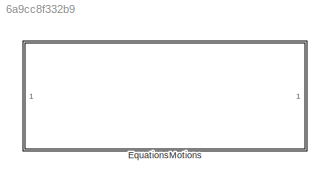
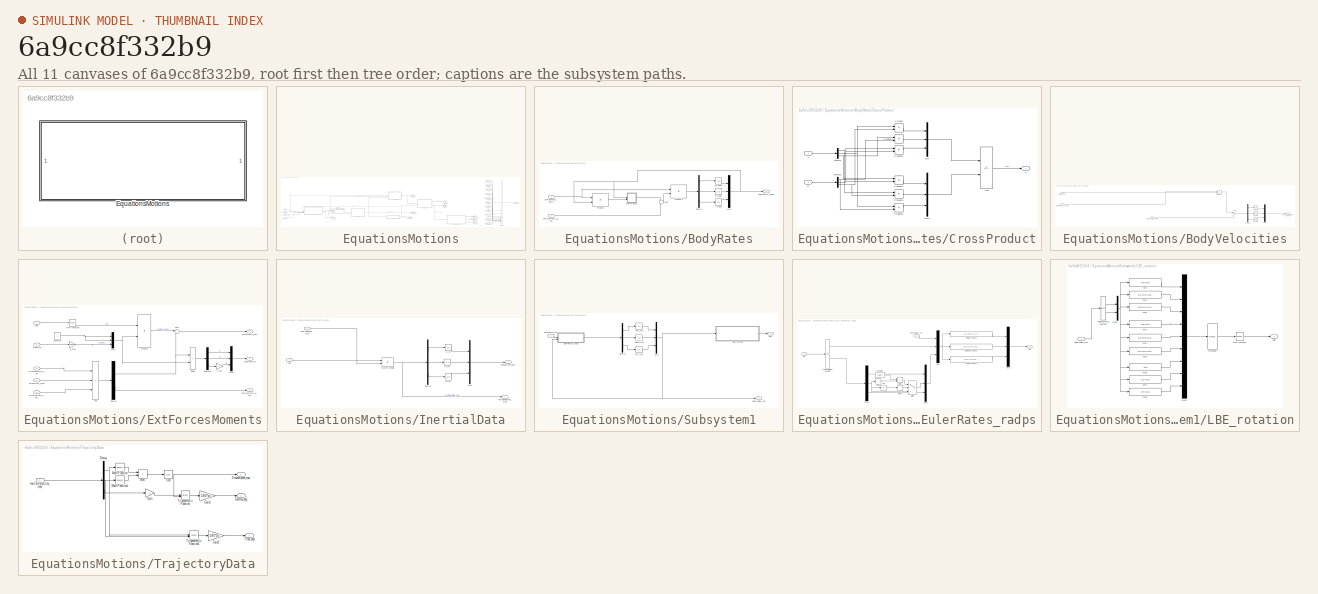
[diagram: thumbnail index - all 11 canvases of the model, root first then tree order]
MODEL slx_6a9cc8f332b9
KIND model
CONFIG AbsTol = auto
CONFIG EnableMultiTasking = off
CONFIG FixedStep = auto
CONFIG MaxStep = auto
CONFIG MinStep = auto
CONFIG RelTol = 1e-3
CONFIG SampleTimeConstraint = Unconstrained
CONFIG SolverName = VariableStepAuto
CONFIG StartTime = 0.0
CONFIG StopTime = 10.0
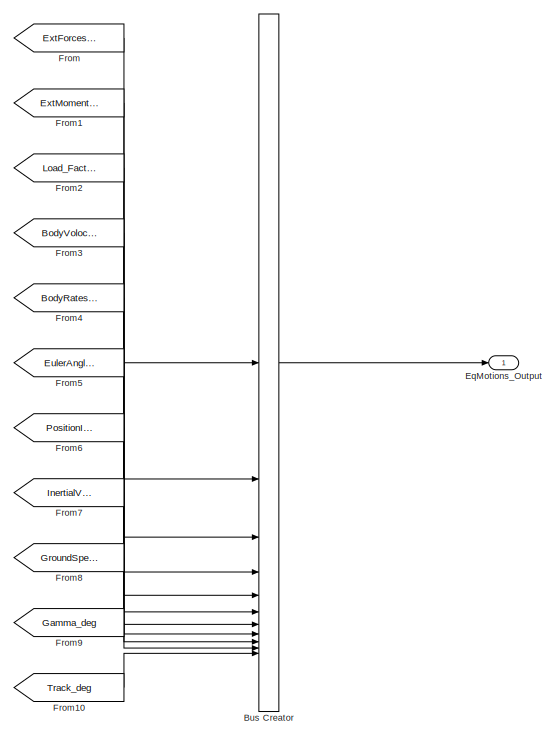
[diagram: EquationsMotions - part 1/4, right side, full height]
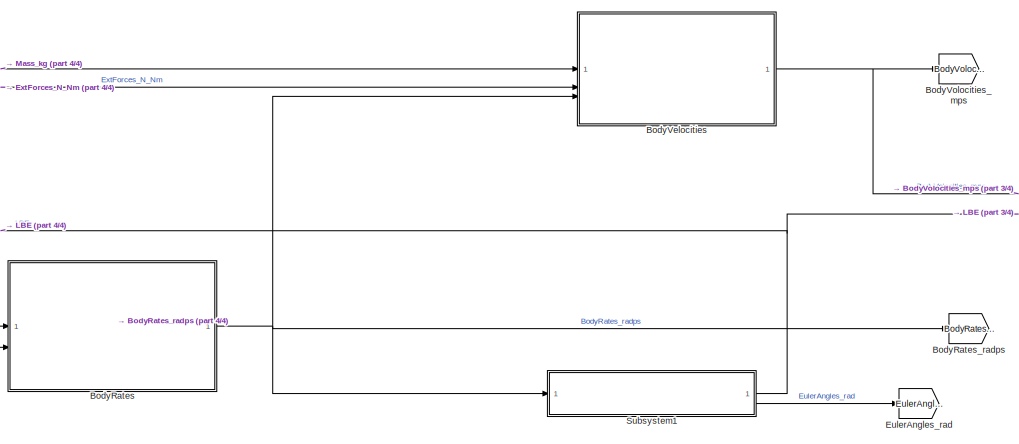
[diagram: EquationsMotions - part 2/4, central region]
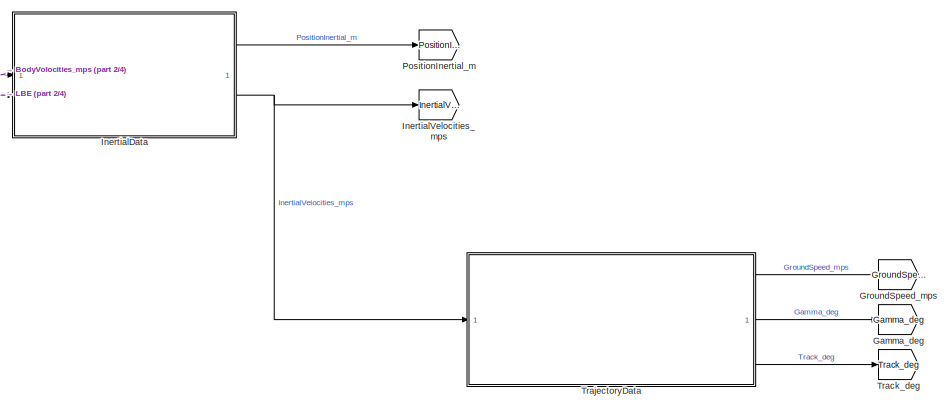
[diagram: EquationsMotions - part 3/4, bottom right region]
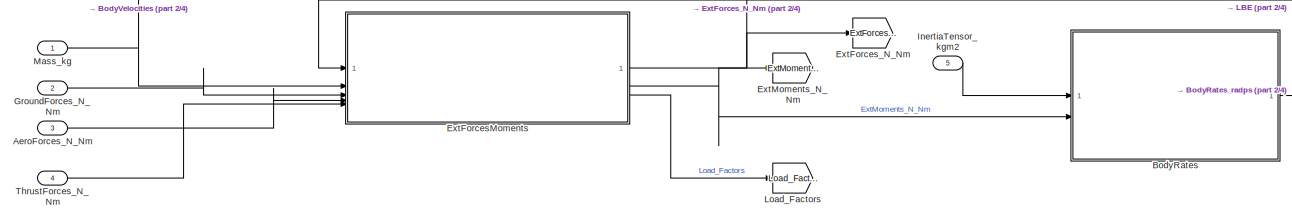
[diagram: EquationsMotions - part 4/4, bottom left region]
BLOCK [SubSystem] EquationsMotions
BLOCK [Inport] EquationsMotions/AeroForces_N_Nm
  Port = 3
BLOCK [SubSystem] EquationsMotions/BodyRates
BLOCK [Outport] EquationsMotions/BodyRates/BodyRates_radps
BLOCK [SubSystem] EquationsMotions/BodyRates/CrossProduct
BLOCK [Inport] EquationsMotions/BodyRates/CrossProduct/A
BLOCK [Sum] EquationsMotions/BodyRates/CrossProduct/Add
  IconShape = rectangular
  Inputs = +-
BLOCK [Inport] EquationsMotions/BodyRates/CrossProduct/B
  Port = 2
BLOCK [Outport] EquationsMotions/BodyRates/CrossProduct/C
BLOCK [Demux] EquationsMotions/BodyRates/CrossProduct/Demux
  Outputs = 3
BLOCK [Demux] EquationsMotions/BodyRates/CrossProduct/Demux1
  Outputs = 3
BLOCK [Mux] EquationsMotions/BodyRates/CrossProduct/Mux
  DisplayOption = bar
  Inputs = 3
BLOCK [Mux] EquationsMotions/BodyRates/CrossProduct/Mux1
  DisplayOption = bar
  Inputs = 3
BLOCK [Product] EquationsMotions/BodyRates/CrossProduct/Product
BLOCK [Product] EquationsMotions/BodyRates/CrossProduct/Product1
BLOCK [Product] EquationsMotions/BodyRates/CrossProduct/Product2
BLOCK [Product] EquationsMotions/BodyRates/CrossProduct/Product3
BLOCK [Product] EquationsMotions/BodyRates/CrossProduct/Product4
BLOCK [Product] EquationsMotions/BodyRates/CrossProduct/Product5
BLOCK [Demux] EquationsMotions/BodyRates/Demux
  Outputs = 3
BLOCK [Inport] EquationsMotions/BodyRates/ExtMoments_N_Nm
  Port = 2
BLOCK [Inport] EquationsMotions/BodyRates/InertiaTensor_kgm2
BLOCK [Mux] EquationsMotions/BodyRates/Mux
  DisplayOption = bar
  Inputs = 3
BLOCK [Product] EquationsMotions/BodyRates/Product
  Multiplication = Matrix(*)
BLOCK [Product] EquationsMotions/BodyRates/Product1
  Inputs = /*
BLOCK [Sum] EquationsMotions/BodyRates/Sum
  Inputs = -+
BLOCK [Integrator] EquationsMotions/BodyRates/p_radps
BLOCK [Integrator] EquationsMotions/BodyRates/q_radps
BLOCK [Integrator] EquationsMotions/BodyRates/r_radps
BLOCK [Goto] EquationsMotions/BodyRates_radps
  GotoTag = BodyRates_radps
BLOCK [SubSystem] EquationsMotions/BodyVelocities
BLOCK [Inport] EquationsMotions/BodyVelocities/BodyRates_mps
  Port = 3
BLOCK [Outport] EquationsMotions/BodyVelocities/BodyVolocities_radps
BLOCK [Demux] EquationsMotions/BodyVelocities/Demux
  Outputs = 3
BLOCK [Inport] EquationsMotions/BodyVelocities/ExtForces_N_Nm
  Port = 2
BLOCK [Inport] EquationsMotions/BodyVelocities/Mass_KG
BLOCK [Mux] EquationsMotions/BodyVelocities/Mux
  DisplayOption = bar
  Inputs = 3
BLOCK [Product] EquationsMotions/BodyVelocities/Product
  Inputs = */
BLOCK [Sum] EquationsMotions/BodyVelocities/Sum
  Inputs = |+-
BLOCK [Integrator] EquationsMotions/BodyVelocities/q_mps
BLOCK [Integrator] EquationsMotions/BodyVelocities/u_mps
BLOCK [Integrator] EquationsMotions/BodyVelocities/v_mps
BLOCK [Goto] EquationsMotions/BodyVolocities_mps
  GotoTag = BodyVolocities_mps
BLOCK [BusCreator] EquationsMotions/Bus Creator
  DisplayOption = bar
  InheritFromInputs = on
  Inputs = 11
BLOCK [Outport] EquationsMotions/EqMotions_Output
BLOCK [Goto] EquationsMotions/EulerAngles_rad
  GotoTag = EulerAngles_rad
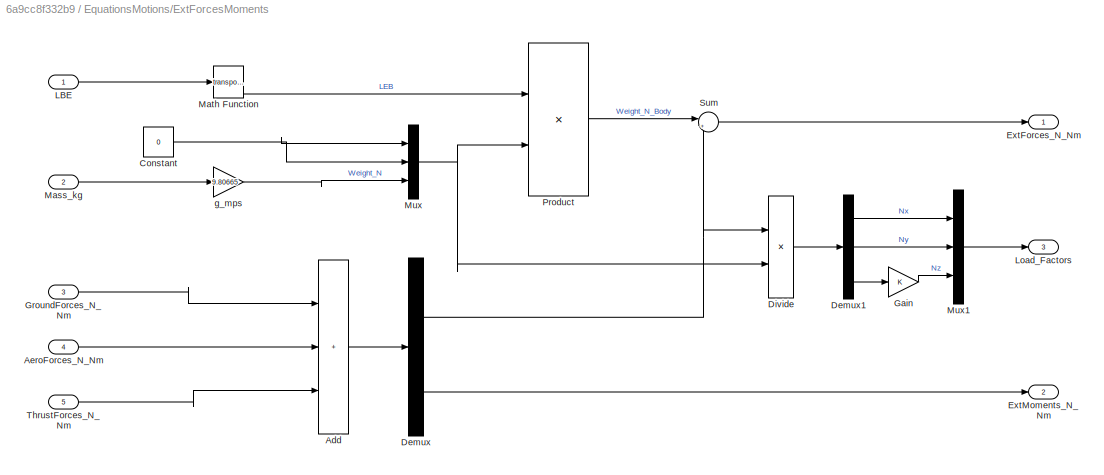
BLOCK [SubSystem] EquationsMotions/ExtForcesMoments
BLOCK [Sum] EquationsMotions/ExtForcesMoments/Add
  IconShape = rectangular
  Inputs = +++
BLOCK [Inport] EquationsMotions/ExtForcesMoments/AeroForces_N_Nm
  Port = 4
BLOCK [Constant] EquationsMotions/ExtForcesMoments/Constant
  Value = 0
BLOCK [Demux] EquationsMotions/ExtForcesMoments/Demux
  Outputs = 2
BLOCK [Demux] EquationsMotions/ExtForcesMoments/Demux1
  Outputs = 3
BLOCK [Product] EquationsMotions/ExtForcesMoments/Divide
  Inputs = */
  Multiplication = Matrix(*)
BLOCK [Outport] EquationsMotions/ExtForcesMoments/ExtForces_N_Nm
BLOCK [Outport] EquationsMotions/ExtForcesMoments/ExtMoments_N_Nm
  Port = 2
BLOCK [Gain] EquationsMotions/ExtForcesMoments/Gain
BLOCK [Inport] EquationsMotions/ExtForcesMoments/GroundForces_N_Nm
  Port = 3
BLOCK [Inport] EquationsMotions/ExtForcesMoments/LBE
BLOCK [Outport] EquationsMotions/ExtForcesMoments/Load_Factors
  Port = 3
BLOCK [Inport] EquationsMotions/ExtForcesMoments/Mass_kg
  Port = 2
BLOCK [Math] EquationsMotions/ExtForcesMoments/Math Function
  Operator = transpose
BLOCK [Mux] EquationsMotions/ExtForcesMoments/Mux
  DisplayOption = bar
  Inputs = 3
BLOCK [Mux] EquationsMotions/ExtForcesMoments/Mux1
  DisplayOption = bar
  Inputs = 3
BLOCK [Product] EquationsMotions/ExtForcesMoments/Product
  Multiplication = Matrix(*)
BLOCK [Sum] EquationsMotions/ExtForcesMoments/Sum
  Inputs = |++
BLOCK [Inport] EquationsMotions/ExtForcesMoments/ThrustForces_N_Nm
  Port = 5
BLOCK [Gain] EquationsMotions/ExtForcesMoments/g_mps
  Gain = 9.80665
BLOCK [Goto] EquationsMotions/ExtForces_N_Nm
  GotoTag = ExtForces_N_Nm
BLOCK [Goto] EquationsMotions/ExtMoments_N_Nm
  GotoTag = ExtMoments_N_Nm
BLOCK [From] EquationsMotions/From
  GotoTag = ExtForces_N_Nm
BLOCK [From] EquationsMotions/From1
  GotoTag = ExtMoments_N_Nm
BLOCK [From] EquationsMotions/From10
  GotoTag = Track_deg
BLOCK [From] EquationsMotions/From2
  GotoTag = Load_Factors
BLOCK [From] EquationsMotions/From3
  GotoTag = BodyVolocities_mps
BLOCK [From] EquationsMotions/From4
  GotoTag = BodyRates_radps
BLOCK [From] EquationsMotions/From5
  GotoTag = EulerAngles_rad
BLOCK [From] EquationsMotions/From6
  GotoTag = PositionInertial_m
BLOCK [From] EquationsMotions/From7
  GotoTag = InertialVelocities_mps
BLOCK [From] EquationsMotions/From8
  GotoTag = GroundSpeed_mps
BLOCK [From] EquationsMotions/From9
  GotoTag = Gamma_deg
BLOCK [Goto] EquationsMotions/Gamma_deg
  GotoTag = Gamma_deg
BLOCK [Inport] EquationsMotions/GroundForces_N_Nm
  Port = 2
BLOCK [Goto] EquationsMotions/GroundSpeed_mps
  GotoTag = GroundSpeed_mps
BLOCK [Inport] EquationsMotions/InertiaTensor_kgm2
  Port = 5
BLOCK [SubSystem] EquationsMotions/InertialData
BLOCK [Inport] EquationsMotions/InertialData/BodyVolocities_mps
BLOCK [Demux] EquationsMotions/InertialData/Demux
  Outputs = 3
BLOCK [Outport] EquationsMotions/InertialData/InertialVelocities_mps
  Port = 2
BLOCK [Inport] EquationsMotions/InertialData/LBE
  Port = 2
BLOCK [Product] EquationsMotions/InertialData/Matrix Multiply
  Multiplication = Matrix(*)
BLOCK [Mux] EquationsMotions/InertialData/Mux
  DisplayOption = bar
  Inputs = 3
BLOCK [Outport] EquationsMotions/InertialData/PositionInertial_m
BLOCK [Integrator] EquationsMotions/InertialData/XI_m
BLOCK [Integrator] EquationsMotions/InertialData/YI_m
BLOCK [Integrator] EquationsMotions/InertialData/ZI_m
BLOCK [Goto] EquationsMotions/InertialVelocities_mps
  GotoTag = InertialVelocities_mps
BLOCK [Goto] EquationsMotions/Load_Factors
  GotoTag = Load_Factors
BLOCK [Inport] EquationsMotions/Mass_kg
BLOCK [Goto] EquationsMotions/PositionInertial_m
  GotoTag = PositionInertial_m
BLOCK [SubSystem] EquationsMotions/Subsystem1
BLOCK [Inport] EquationsMotions/Subsystem1/BodyRates_rps
BLOCK [Demux] EquationsMotions/Subsystem1/Demux
  Outputs = 3
BLOCK [Outport] EquationsMotions/Subsystem1/EulerAngles_rad
  Port = 2
BLOCK [SubSystem] EquationsMotions/Subsystem1/EulerRates_radps
BLOCK [Abs] EquationsMotions/Subsystem1/EulerRates_radps/Abs
  SaturateOnIntegerOverflow = off
BLOCK [Inport] EquationsMotions/Subsystem1/EulerRates_radps/BodyRates_rps
BLOCK [Constant] EquationsMotions/Subsystem1/EulerRates_radps/Constant
  Value = 0.001
BLOCK [Demux] EquationsMotions/Subsystem1/EulerRates_radps/Demux
  Outputs = 3
BLOCK [Product] EquationsMotions/Subsystem1/EulerRates_radps/Divide
  Inputs = **
BLOCK [Inport] EquationsMotions/Subsystem1/EulerRates_radps/In2
  Port = 2
BLOCK [Mux] EquationsMotions/Subsystem1/EulerRates_radps/Mux
  DisplayOption = bar
  Inputs = 3
BLOCK [Mux] EquationsMotions/Subsystem1/EulerRates_radps/Mux1
  DisplayOption = bar
  Inputs = 3
BLOCK [Mux] EquationsMotions/Subsystem1/EulerRates_radps/Mux2
  DisplayOption = bar
  Inputs = 3
BLOCK [Outport] EquationsMotions/Subsystem1/EulerRates_radps/Out1
BLOCK [Relay] EquationsMotions/Subsystem1/EulerRates_radps/Relay
  OffOutputValue = 1
  OffSwitchValue = 0
  OnOutputValue = 0
  OnSwitchValue = 0.001
BLOCK [Signum] EquationsMotions/Subsystem1/EulerRates_radps/Sign
BLOCK [Switch] EquationsMotions/Subsystem1/EulerRates_radps/Switch
  Criteria = u2 > Threshold
  InputSameDT = off
  SaturateOnIntegerOverflow = off
BLOCK [Trigonometry] EquationsMotions/Subsystem1/EulerRates_radps/Trigonometric Function
  Operator = sincos
BLOCK [Fcn] EquationsMotions/Subsystem1/EulerRates_radps/phidot_radps2
  Expr = u(1)+u(2)*u(4)*(u(5)/u(8))+u(3)*u(7)*(u(5)/u(8))
BLOCK [Fcn] EquationsMotions/Subsystem1/EulerRates_radps/psidot_radps2
  Expr = (u(2)*u(5)+u(3)*u(7))/u(8)
BLOCK [Fcn] EquationsMotions/Subsystem1/EulerRates_radps/thetadot_radps2
  Expr = u(2)*u(7)-u(3)*u(4)
BLOCK [Outport] EquationsMotions/Subsystem1/LBE
BLOCK [SubSystem] EquationsMotions/Subsystem1/LBE_rotation
BLOCK [Inport] EquationsMotions/Subsystem1/LBE_rotation/EulerAngles_rad
BLOCK [Fcn] EquationsMotions/Subsystem1/LBE_rotation/Fcn
  Expr = u(5)*u(6)
BLOCK [Fcn] EquationsMotions/Subsystem1/LBE_rotation/Fcn1
  Expr = u(1)*u(2)*u(6)-u(4)*u(3)
BLOCK [Fcn] EquationsMotions/Subsystem1/LBE_rotation/Fcn2
  Expr = u(6)*u(2)*u(4)+u(1)*u(3)
BLOCK [Fcn] EquationsMotions/Subsystem1/LBE_rotation/Fcn3
  Expr = u(5)*u(3)
BLOCK [Fcn] EquationsMotions/Subsystem1/LBE_rotation/Fcn4
  Expr = u(1)*u(2)*u(3)+u(4)*u(6)
BLOCK [Fcn] EquationsMotions/Subsystem1/LBE_rotation/Fcn5
  Expr = u(4)*u(2)*u(3)-u(1)*u(6)
BLOCK [Fcn] EquationsMotions/Subsystem1/LBE_rotation/Fcn6
  Expr = u(4)*u(5)
BLOCK [Fcn] EquationsMotions/Subsystem1/LBE_rotation/Fcn7
  Expr = u(1)*u(5)
BLOCK [Fcn] EquationsMotions/Subsystem1/LBE_rotation/Fcn8
  Expr = -u(2)
BLOCK [Outport] EquationsMotions/Subsystem1/LBE_rotation/LBE
BLOCK [Math] EquationsMotions/Subsystem1/LBE_rotation/Math Function
  Operator = transpose
BLOCK [Mux] EquationsMotions/Subsystem1/LBE_rotation/Mux1
  DisplayOption = bar
  Inputs = 2
BLOCK [Mux] EquationsMotions/Subsystem1/LBE_rotation/Mux2
  DisplayOption = bar
  Inputs = 9
BLOCK [Reshape] EquationsMotions/Subsystem1/LBE_rotation/Reshape
  OutputDimensionality = Customize
  OutputDimensions = [3,1]
BLOCK [Trigonometry] EquationsMotions/Subsystem1/LBE_rotation/Trigonometric Function
  Operator = sincos
BLOCK [Mux] EquationsMotions/Subsystem1/Mux
  DisplayOption = bar
  Inputs = 3
BLOCK [Integrator] EquationsMotions/Subsystem1/PHI_rad
BLOCK [Integrator] EquationsMotions/Subsystem1/PSI_rad
BLOCK [Integrator] EquationsMotions/Subsystem1/THETA_rad
BLOCK [Inport] EquationsMotions/ThrustForces_N_Nm
  Port = 4
BLOCK [Goto] EquationsMotions/Track_deg
  GotoTag = Track_deg
BLOCK [SubSystem] EquationsMotions/TrajectoryData
BLOCK [Sum] EquationsMotions/TrajectoryData/Add
  IconShape = rectangular
BLOCK [Demux] EquationsMotions/TrajectoryData/Demux
  Outputs = 3
BLOCK [Gain] EquationsMotions/TrajectoryData/Gain
  Gain = -1
BLOCK [Gain] EquationsMotions/TrajectoryData/Gain1
  Gain = 180*pi
BLOCK [Gain] EquationsMotions/TrajectoryData/Gain2
  Gain = 180*pi
BLOCK [Outport] EquationsMotions/TrajectoryData/Gamma_deg
  Port = 2
BLOCK [Outport] EquationsMotions/TrajectoryData/GroundSpeed_mps
BLOCK [Inport] EquationsMotions/TrajectoryData/InertialVelocities_mps
BLOCK [Math] EquationsMotions/TrajectoryData/Math Function
  Operator = square
BLOCK [Math] EquationsMotions/TrajectoryData/Math Function1
  Operator = square
BLOCK [Sqrt] EquationsMotions/TrajectoryData/Sqrt
BLOCK [Outport] EquationsMotions/TrajectoryData/Track_deg
  Port = 3
BLOCK [Trigonometry] EquationsMotions/TrajectoryData/Trigonometric Function
  Operator = atan2
BLOCK [Trigonometry] EquationsMotions/TrajectoryData/Trigonometric Function1
  Operator = atan2
LINE EquationsMotions/AeroForces_N_Nm:1 -> EquationsMotions/ExtForcesMoments:4
LINE EquationsMotions/BodyRates/CrossProduct/A:1 -> EquationsMotions/BodyRates/CrossProduct/Demux:1
LINE EquationsMotions/BodyRates/CrossProduct/Add:1 -> EquationsMotions/BodyRates/CrossProduct/C:1
LINE EquationsMotions/BodyRates/CrossProduct/B:1 -> EquationsMotions/BodyRates/CrossProduct/Demux1:1
NET EquationsMotions/BodyRates/CrossProduct/Demux1:1 -> EquationsMotions/BodyRates/CrossProduct/Product1:2, EquationsMotions/BodyRates/CrossProduct/Product5:2
NET EquationsMotions/BodyRates/CrossProduct/Demux1:2 -> EquationsMotions/BodyRates/CrossProduct/Product2:2, EquationsMotions/BodyRates/CrossProduct/Product3:2
NET EquationsMotions/BodyRates/CrossProduct/Demux1:3 -> EquationsMotions/BodyRates/CrossProduct/Product4:2, EquationsMotions/BodyRates/CrossProduct/Product:2
NET EquationsMotions/BodyRates/CrossProduct/Demux:1 -> EquationsMotions/BodyRates/CrossProduct/Product2:1, EquationsMotions/BodyRates/CrossProduct/Product4:1
NET EquationsMotions/BodyRates/CrossProduct/Demux:2 -> EquationsMotions/BodyRates/CrossProduct/Product5:1, EquationsMotions/BodyRates/CrossProduct/Product:1
NET EquationsMotions/BodyRates/CrossProduct/Demux:3 -> EquationsMotions/BodyRates/CrossProduct/Product1:1, EquationsMotions/BodyRates/CrossProduct/Product3:1
LINE EquationsMotions/BodyRates/CrossProduct/Mux1:1 -> EquationsMotions/BodyRates/CrossProduct/Add:2
LINE EquationsMotions/BodyRates/CrossProduct/Mux:1 -> EquationsMotions/BodyRates/CrossProduct/Add:1
LINE EquationsMotions/BodyRates/CrossProduct/Product1:1 -> EquationsMotions/BodyRates/CrossProduct/Mux:2
LINE EquationsMotions/BodyRates/CrossProduct/Product2:1 -> EquationsMotions/BodyRates/CrossProduct/Mux:3
LINE EquationsMotions/BodyRates/CrossProduct/Product3:1 -> EquationsMotions/BodyRates/CrossProduct/Mux1:1
LINE EquationsMotions/BodyRates/CrossProduct/Product4:1 -> EquationsMotions/BodyRates/CrossProduct/Mux1:2
LINE EquationsMotions/BodyRates/CrossProduct/Product5:1 -> EquationsMotions/BodyRates/CrossProduct/Mux1:3
LINE EquationsMotions/BodyRates/CrossProduct/Product:1 -> EquationsMotions/BodyRates/CrossProduct/Mux:1
LINE EquationsMotions/BodyRates/CrossProduct:1 -> EquationsMotions/BodyRates/Sum:1
LINE EquationsMotions/BodyRates/Demux:1 -> EquationsMotions/BodyRates/p_radps:1
LINE EquationsMotions/BodyRates/Demux:2 -> EquationsMotions/BodyRates/q_radps:1
LINE EquationsMotions/BodyRates/Demux:3 -> EquationsMotions/BodyRates/r_radps:1
LINE EquationsMotions/BodyRates/ExtMoments_N_Nm:1 -> EquationsMotions/BodyRates/Sum:2
NET EquationsMotions/BodyRates/InertiaTensor_kgm2:1 -> EquationsMotions/BodyRates/Product1:1, EquationsMotions/BodyRates/Product:1
NET EquationsMotions/BodyRates/Mux:1 -> EquationsMotions/BodyRates/BodyRates_radps:1, EquationsMotions/BodyRates/CrossProduct:1, EquationsMotions/BodyRates/Product:2
LINE EquationsMotions/BodyRates/Product1:1 -> EquationsMotions/BodyRates/Demux:1
LINE EquationsMotions/BodyRates/Product:1 -> EquationsMotions/BodyRates/CrossProduct:2
LINE EquationsMotions/BodyRates/Sum:1 -> EquationsMotions/BodyRates/Product1:2
LINE EquationsMotions/BodyRates/p_radps:1 -> EquationsMotions/BodyRates/Mux:1
LINE EquationsMotions/BodyRates/q_radps:1 -> EquationsMotions/BodyRates/Mux:2
LINE EquationsMotions/BodyRates/r_radps:1 -> EquationsMotions/BodyRates/Mux:3
NET EquationsMotions/BodyRates:1 -> EquationsMotions/BodyRates_radps:1, EquationsMotions/BodyVelocities:3, EquationsMotions/Subsystem1:1
LINE EquationsMotions/BodyVelocities/BodyRates_mps:1 -> EquationsMotions/BodyVelocities/Sum:2
LINE EquationsMotions/BodyVelocities/Demux:1 -> EquationsMotions/BodyVelocities/u_mps:1
LINE EquationsMotions/BodyVelocities/Demux:2 -> EquationsMotions/BodyVelocities/v_mps:1
LINE EquationsMotions/BodyVelocities/Demux:3 -> EquationsMotions/BodyVelocities/q_mps:1
LINE EquationsMotions/BodyVelocities/ExtForces_N_Nm:1 -> EquationsMotions/BodyVelocities/Product:1
LINE EquationsMotions/BodyVelocities/Mass_KG:1 -> EquationsMotions/BodyVelocities/Product:2
LINE EquationsMotions/BodyVelocities/Mux:1 -> EquationsMotions/BodyVelocities/BodyVolocities_radps:1
LINE EquationsMotions/BodyVelocities/Product:1 -> EquationsMotions/BodyVelocities/Sum:1
LINE EquationsMotions/BodyVelocities/Sum:1 -> EquationsMotions/BodyVelocities/Demux:1
LINE EquationsMotions/BodyVelocities/q_mps:1 -> EquationsMotions/BodyVelocities/Mux:3
LINE EquationsMotions/BodyVelocities/u_mps:1 -> EquationsMotions/BodyVelocities/Mux:1
LINE EquationsMotions/BodyVelocities/v_mps:1 -> EquationsMotions/BodyVelocities/Mux:2
NET EquationsMotions/BodyVelocities:1 -> EquationsMotions/BodyVolocities_mps:1, EquationsMotions/InertialData:1
LINE EquationsMotions/Bus Creator:1 -> EquationsMotions/EqMotions_Output:1
LINE EquationsMotions/ExtForcesMoments/Add:1 -> EquationsMotions/ExtForcesMoments/Demux:1
LINE EquationsMotions/ExtForcesMoments/AeroForces_N_Nm:1 -> EquationsMotions/ExtForcesMoments/Add:2
NET EquationsMotions/ExtForcesMoments/Constant:1 -> EquationsMotions/ExtForcesMoments/Mux:1, EquationsMotions/ExtForcesMoments/Mux:2
LINE EquationsMotions/ExtForcesMoments/Demux1:1 -> EquationsMotions/ExtForcesMoments/Mux1:1
LINE EquationsMotions/ExtForcesMoments/Demux1:2 -> EquationsMotions/ExtForcesMoments/Mux1:2
LINE EquationsMotions/ExtForcesMoments/Demux1:3 -> EquationsMotions/ExtForcesMoments/Gain:1
NET EquationsMotions/ExtForcesMoments/Demux:1 -> EquationsMotions/ExtForcesMoments/Divide:1, EquationsMotions/ExtForcesMoments/Sum:2
LINE EquationsMotions/ExtForcesMoments/Demux:2 -> EquationsMotions/ExtForcesMoments/ExtMoments_N_Nm:1
LINE EquationsMotions/ExtForcesMoments/Divide:1 -> EquationsMotions/ExtForcesMoments/Demux1:1
LINE EquationsMotions/ExtForcesMoments/Gain:1 -> EquationsMotions/ExtForcesMoments/Mux1:3
LINE EquationsMotions/ExtForcesMoments/GroundForces_N_Nm:1 -> EquationsMotions/ExtForcesMoments/Add:1
LINE EquationsMotions/ExtForcesMoments/LBE:1 -> EquationsMotions/ExtForcesMoments/Math Function:1
LINE EquationsMotions/ExtForcesMoments/Mass_kg:1 -> EquationsMotions/ExtForcesMoments/g_mps:1
LINE EquationsMotions/ExtForcesMoments/Math Function:1 -> EquationsMotions/ExtForcesMoments/Product:1
LINE EquationsMotions/ExtForcesMoments/Mux1:1 -> EquationsMotions/ExtForcesMoments/Load_Factors:1
NET EquationsMotions/ExtForcesMoments/Mux:1 -> EquationsMotions/ExtForcesMoments/Divide:2, EquationsMotions/ExtForcesMoments/Product:2
LINE EquationsMotions/ExtForcesMoments/Product:1 -> EquationsMotions/ExtForcesMoments/Sum:1
LINE EquationsMotions/ExtForcesMoments/Sum:1 -> EquationsMotions/ExtForcesMoments/ExtForces_N_Nm:1
LINE EquationsMotions/ExtForcesMoments/ThrustForces_N_Nm:1 -> EquationsMotions/ExtForcesMoments/Add:3
LINE EquationsMotions/ExtForcesMoments/g_mps:1 -> EquationsMotions/ExtForcesMoments/Mux:3
NET EquationsMotions/ExtForcesMoments:1 -> EquationsMotions/BodyVelocities:2, EquationsMotions/ExtForces_N_Nm:1
NET EquationsMotions/ExtForcesMoments:2 -> EquationsMotions/BodyRates:2, EquationsMotions/ExtMoments_N_Nm:1
LINE EquationsMotions/ExtForcesMoments:3 -> EquationsMotions/Load_Factors:1
LINE EquationsMotions/From10:1 -> EquationsMotions/Bus Creator:11
LINE EquationsMotions/From1:1 -> EquationsMotions/Bus Creator:2
LINE EquationsMotions/From2:1 -> EquationsMotions/Bus Creator:3
LINE EquationsMotions/From3:1 -> EquationsMotions/Bus Creator:4
LINE EquationsMotions/From4:1 -> EquationsMotions/Bus Creator:5
LINE EquationsMotions/From5:1 -> EquationsMotions/Bus Creator:6
LINE EquationsMotions/From6:1 -> EquationsMotions/Bus Creator:7
LINE EquationsMotions/From7:1 -> EquationsMotions/Bus Creator:8
LINE EquationsMotions/From8:1 -> EquationsMotions/Bus Creator:9
LINE EquationsMotions/From9:1 -> EquationsMotions/Bus Creator:10
LINE EquationsMotions/From:1 -> EquationsMotions/Bus Creator:1
LINE EquationsMotions/GroundForces_N_Nm:1 -> EquationsMotions/ExtForcesMoments:3
LINE EquationsMotions/InertiaTensor_kgm2:1 -> EquationsMotions/BodyRates:1
LINE EquationsMotions/InertialData/BodyVolocities_mps:1 -> EquationsMotions/InertialData/Matrix Multiply:2
LINE EquationsMotions/InertialData/Demux:1 -> EquationsMotions/InertialData/XI_m:1
LINE EquationsMotions/InertialData/Demux:2 -> EquationsMotions/InertialData/YI_m:1
LINE EquationsMotions/InertialData/Demux:3 -> EquationsMotions/InertialData/ZI_m:1
LINE EquationsMotions/InertialData/LBE:1 -> EquationsMotions/InertialData/Matrix Multiply:1
NET EquationsMotions/InertialData/Matrix Multiply:1 -> EquationsMotions/InertialData/Demux:1, EquationsMotions/InertialData/InertialVelocities_mps:1
LINE EquationsMotions/InertialData/Mux:1 -> EquationsMotions/InertialData/PositionInertial_m:1
LINE EquationsMotions/InertialData/XI_m:1 -> EquationsMotions/InertialData/Mux:1
LINE EquationsMotions/InertialData/YI_m:1 -> EquationsMotions/InertialData/Mux:2
LINE EquationsMotions/InertialData/ZI_m:1 -> EquationsMotions/InertialData/Mux:3
LINE EquationsMotions/InertialData:1 -> EquationsMotions/PositionInertial_m:1
NET EquationsMotions/InertialData:2 -> EquationsMotions/InertialVelocities_mps:1, EquationsMotions/TrajectoryData:1
NET EquationsMotions/Mass_kg:1 -> EquationsMotions/BodyVelocities:1, EquationsMotions/ExtForcesMoments:2
LINE EquationsMotions/Subsystem1/BodyRates_rps:1 -> EquationsMotions/Subsystem1/EulerRates_radps:1
LINE EquationsMotions/Subsystem1/Demux:1 -> EquationsMotions/Subsystem1/PHI_rad:1
LINE EquationsMotions/Subsystem1/Demux:2 -> EquationsMotions/Subsystem1/THETA_rad:1
LINE EquationsMotions/Subsystem1/Demux:3 -> EquationsMotions/Subsystem1/PSI_rad:1
LINE EquationsMotions/Subsystem1/EulerRates_radps/Abs:1 -> EquationsMotions/Subsystem1/EulerRates_radps/Relay:1
LINE EquationsMotions/Subsystem1/EulerRates_radps/BodyRates_rps:1 -> EquationsMotions/Subsystem1/EulerRates_radps/Mux:1
LINE EquationsMotions/Subsystem1/EulerRates_radps/Constant:1 -> EquationsMotions/Subsystem1/EulerRates_radps/Divide:1
LINE EquationsMotions/Subsystem1/EulerRates_radps/Demux:1 -> EquationsMotions/Subsystem1/EulerRates_radps/Mux2:1
NET EquationsMotions/Subsystem1/EulerRates_radps/Demux:2 -> EquationsMotions/Subsystem1/EulerRates_radps/Abs:1, EquationsMotions/Subsystem1/EulerRates_radps/Sign:1, EquationsMotions/Subsystem1/EulerRates_radps/Switch:3
LINE EquationsMotions/Subsystem1/EulerRates_radps/Demux:3 -> EquationsMotions/Subsystem1/EulerRates_radps/Mux2:3
LINE EquationsMotions/Subsystem1/EulerRates_radps/Divide:1 -> EquationsMotions/Subsystem1/EulerRates_radps/Switch:1
LINE EquationsMotions/Subsystem1/EulerRates_radps/In2:1 -> EquationsMotions/Subsystem1/EulerRates_radps/Trigonometric Function:1
LINE EquationsMotions/Subsystem1/EulerRates_radps/Mux1:1 -> EquationsMotions/Subsystem1/EulerRates_radps/Out1:1
LINE EquationsMotions/Subsystem1/EulerRates_radps/Mux2:1 -> EquationsMotions/Subsystem1/EulerRates_radps/Mux:3
NET EquationsMotions/Subsystem1/EulerRates_radps/Mux:1 -> EquationsMotions/Subsystem1/EulerRates_radps/phidot_radps2:1, EquationsMotions/Subsystem1/EulerRates_radps/psidot_radps2:1, EquationsMotions/Subsystem1/EulerRates_radps/thetadot_radps2:1
LINE EquationsMotions/Subsystem1/EulerRates_radps/Relay:1 -> EquationsMotions/Subsystem1/EulerRates_radps/Switch:2
LINE EquationsMotions/Subsystem1/EulerRates_radps/Sign:1 -> EquationsMotions/Subsystem1/EulerRates_radps/Divide:2
LINE EquationsMotions/Subsystem1/EulerRates_radps/Switch:1 -> EquationsMotions/Subsystem1/EulerRates_radps/Mux2:2
LINE EquationsMotions/Subsystem1/EulerRates_radps/Trigonometric Function:1 -> EquationsMotions/Subsystem1/EulerRates_radps/Mux:2
LINE EquationsMotions/Subsystem1/EulerRates_radps/Trigonometric Function:2 -> EquationsMotions/Subsystem1/EulerRates_radps/Demux:1
LINE EquationsMotions/Subsystem1/EulerRates_radps/phidot_radps2:1 -> EquationsMotions/Subsystem1/EulerRates_radps/Mux1:1
LINE EquationsMotions/Subsystem1/EulerRates_radps/psidot_radps2:1 -> EquationsMotions/Subsystem1/EulerRates_radps/Mux1:3
LINE EquationsMotions/Subsystem1/EulerRates_radps/thetadot_radps2:1 -> EquationsMotions/Subsystem1/EulerRates_radps/Mux1:2
LINE EquationsMotions/Subsystem1/EulerRates_radps:1 -> EquationsMotions/Subsystem1/Demux:1
LINE EquationsMotions/Subsystem1/LBE_rotation/EulerAngles_rad:1 -> EquationsMotions/Subsystem1/LBE_rotation/Trigonometric Function:1
LINE EquationsMotions/Subsystem1/LBE_rotation/Fcn1:1 -> EquationsMotions/Subsystem1/LBE_rotation/Mux2:2
LINE EquationsMotions/Subsystem1/LBE_rotation/Fcn2:1 -> EquationsMotions/Subsystem1/LBE_rotation/Mux2:3
LINE EquationsMotions/Subsystem1/LBE_rotation/Fcn3:1 -> EquationsMotions/Subsystem1/LBE_rotation/Mux2:4
LINE EquationsMotions/Subsystem1/LBE_rotation/Fcn4:1 -> EquationsMotions/Subsystem1/LBE_rotation/Mux2:5
LINE EquationsMotions/Subsystem1/LBE_rotation/Fcn5:1 -> EquationsMotions/Subsystem1/LBE_rotation/Mux2:6
LINE EquationsMotions/Subsystem1/LBE_rotation/Fcn6:1 -> EquationsMotions/Subsystem1/LBE_rotation/Mux2:9
LINE EquationsMotions/Subsystem1/LBE_rotation/Fcn7:1 -> EquationsMotions/Subsystem1/LBE_rotation/Mux2:8
LINE EquationsMotions/Subsystem1/LBE_rotation/Fcn8:1 -> EquationsMotions/Subsystem1/LBE_rotation/Mux2:7
LINE EquationsMotions/Subsystem1/LBE_rotation/Fcn:1 -> EquationsMotions/Subsystem1/LBE_rotation/Mux2:1
LINE EquationsMotions/Subsystem1/LBE_rotation/Math Function:1 -> EquationsMotions/Subsystem1/LBE_rotation/LBE:1
NET EquationsMotions/Subsystem1/LBE_rotation/Mux1:1 -> EquationsMotions/Subsystem1/LBE_rotation/Fcn1:1, EquationsMotions/Subsystem1/LBE_rotation/Fcn2:1, EquationsMotions/Subsystem1/LBE_rotation/Fcn3:1, EquationsMotions/Subsystem1/LBE_rotation/Fcn4:1, EquationsMotions/Subsystem1/LBE_rotation/Fcn5:1, EquationsMotions/Subsystem1/LBE_rotation/Fcn6:1, EquationsMotions/Subsystem1/LBE_rotation/Fcn7:1, EquationsMotions/Subsystem1/LBE_rotation/Fcn8:1, EquationsMotions/Subsystem1/LBE_rotation/Fcn:1
LINE EquationsMotions/Subsystem1/LBE_rotation/Mux2:1 -> EquationsMotions/Subsystem1/LBE_rotation/Reshape:1
LINE EquationsMotions/Subsystem1/LBE_rotation/Reshape:1 -> EquationsMotions/Subsystem1/LBE_rotation/Math Function:1
LINE EquationsMotions/Subsystem1/LBE_rotation/Trigonometric Function:1 -> EquationsMotions/Subsystem1/LBE_rotation/Mux1:1
LINE EquationsMotions/Subsystem1/LBE_rotation/Trigonometric Function:2 -> EquationsMotions/Subsystem1/LBE_rotation/Mux1:2
LINE EquationsMotions/Subsystem1/LBE_rotation:1 -> EquationsMotions/Subsystem1/LBE:1
NET EquationsMotions/Subsystem1/Mux:1 -> EquationsMotions/Subsystem1/EulerAngles_rad:1, EquationsMotions/Subsystem1/EulerRates_radps:2, EquationsMotions/Subsystem1/LBE_rotation:1
LINE EquationsMotions/Subsystem1/PHI_rad:1 -> EquationsMotions/Subsystem1/Mux:1
LINE EquationsMotions/Subsystem1/PSI_rad:1 -> EquationsMotions/Subsystem1/Mux:3
LINE EquationsMotions/Subsystem1/THETA_rad:1 -> EquationsMotions/Subsystem1/Mux:2
NET EquationsMotions/Subsystem1:1 -> EquationsMotions/ExtForcesMoments:1, EquationsMotions/InertialData:2
LINE EquationsMotions/Subsystem1:2 -> EquationsMotions/EulerAngles_rad:1
LINE EquationsMotions/ThrustForces_N_Nm:1 -> EquationsMotions/ExtForcesMoments:5
LINE EquationsMotions/TrajectoryData/Add:1 -> EquationsMotions/TrajectoryData/Sqrt:1
NET EquationsMotions/TrajectoryData/Demux:1 -> EquationsMotions/TrajectoryData/Math Function:1, EquationsMotions/TrajectoryData/Trigonometric Function1:1
NET EquationsMotions/TrajectoryData/Demux:2 -> EquationsMotions/TrajectoryData/Math Function1:1, EquationsMotions/TrajectoryData/Trigonometric Function1:2
LINE EquationsMotions/TrajectoryData/Demux:3 -> EquationsMotions/TrajectoryData/Gain:1
LINE EquationsMotions/TrajectoryData/Gain1:1 -> EquationsMotions/TrajectoryData/Gamma_deg:1
LINE EquationsMotions/TrajectoryData/Gain2:1 -> EquationsMotions/TrajectoryData/Track_deg:1
LINE EquationsMotions/TrajectoryData/Gain:1 -> EquationsMotions/TrajectoryData/Trigonometric Function:1
LINE EquationsMotions/TrajectoryData/InertialVelocities_mps:1 -> EquationsMotions/TrajectoryData/Demux:1
LINE EquationsMotions/TrajectoryData/Math Function1:1 -> EquationsMotions/TrajectoryData/Add:2
LINE EquationsMotions/TrajectoryData/Math Function:1 -> EquationsMotions/TrajectoryData/Add:1
NET EquationsMotions/TrajectoryData/Sqrt:1 -> EquationsMotions/TrajectoryData/GroundSpeed_mps:1, EquationsMotions/TrajectoryData/Trigonometric Function:2
LINE EquationsMotions/TrajectoryData/Trigonometric Function1:1 -> EquationsMotions/TrajectoryData/Gain2:1
LINE EquationsMotions/TrajectoryData/Trigonometric Function:1 -> EquationsMotions/TrajectoryData/Gain1:1
LINE EquationsMotions/TrajectoryData:1 -> EquationsMotions/GroundSpeed_mps:1
LINE EquationsMotions/TrajectoryData:2 -> EquationsMotions/Gamma_deg:1
LINE EquationsMotions/TrajectoryData:3 -> EquationsMotions/Track_deg:1
note: NET lines group one-source signal fan-out (src -> all destinations, sorted); 1:1 wires keep LINE
